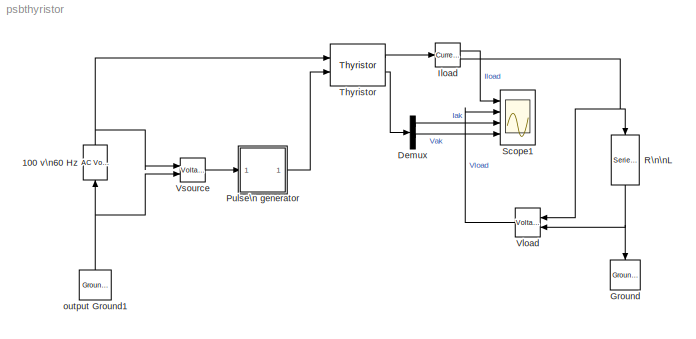
MODEL psbthyristor
KIND model
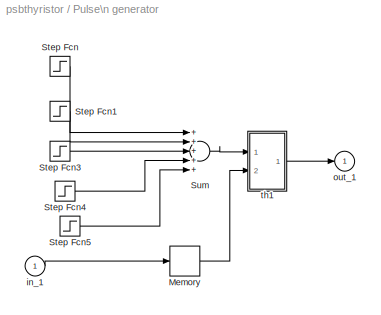
BLOCK [SubSystem]  Pulse\n generator
  MaskDisplay = plot(0,0,100,100,[90,75,75,60,60,35,35,20,20,10],[20,20,80,80,20,20,80,80,20,20])
  MaskIconFrame = on
  MaskIconOpaque = on
  MaskIconRotate = none
  MaskIconUnits = autoscale
  MinAlgLoopOccurrences = off
  Ports = [1, 1]
  RTWSystemCode = Auto
  ShowPortLabels = off
  TreatAsAtomicUnit = off
BLOCK [Memory]  Pulse\n generator/Memory
BLOCK [Step]  Pulse\n generator/Step Fcn
  After = 20
  Before = 20
  SampleTime = 0
  Time = 1/60
BLOCK [Step]  Pulse\n generator/Step Fcn1
  After = 30
  SampleTime = 0
  Time = 1/60
BLOCK [Step]  Pulse\n generator/Step Fcn3
  After = 30
  SampleTime = 0
  Time = 2/60
BLOCK [Step]  Pulse\n generator/Step Fcn4
  After = 30
  SampleTime = 0
  Time = 3/60
BLOCK [Step]  Pulse\n generator/Step Fcn5
  After = 30
  SampleTime = 0
  Time = 4/60
BLOCK [Sum]  Pulse\n generator/Sum
  Inputs = +++++
  Ports = [5, 1]
BLOCK [Inport]  Pulse\n generator/in_1
  IconDisplay = Port number
  LatchInput = off
  Port = 1
BLOCK [Outport]  Pulse\n generator/out_1
  IconDisplay = Port number
  InitialOutput = 0
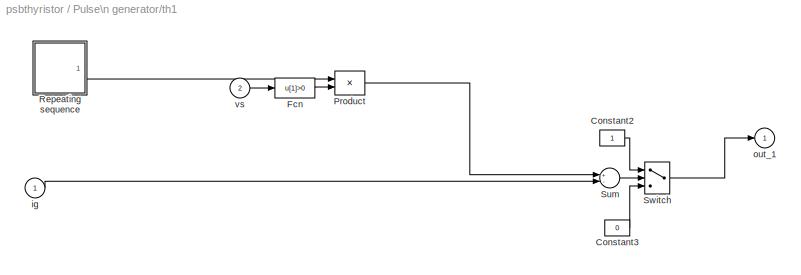
BLOCK [SubSystem]  Pulse\n generator/th1
  MinAlgLoopOccurrences = off
  Ports = [2, 1]
  RTWSystemCode = Auto
  ShowPortLabels = off
  TreatAsAtomicUnit = off
BLOCK [Constant]  Pulse\n generator/th1/Constant2
BLOCK [Constant]  Pulse\n generator/th1/Constant3
  Value = 0
BLOCK [Fcn]  Pulse\n generator/th1/Fcn
  Expr = u[1]>0
BLOCK [Product]  Pulse\n generator/th1/Product
  Ports = [2, 1]
  RndMeth = Floor
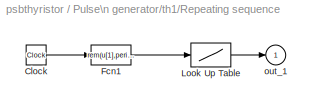
BLOCK [SubSystem]  Pulse\n generator/th1/Repeating sequence
  MaskCallbackString = |
  MaskDescription = Repeating table.\nEnter values of time and output for first cycle.
  MaskDisplay = plot([t,t+period,t+2*period],[y,y,y])
  MaskEnableString = on,on
  MaskHelp = Repeats cycle given in table. Time values should be monotonically increasing.
  MaskIconFrame = on
  MaskIconOpaque = on
  MaskIconRotate = none
  MaskIconUnits = autoscale
  MaskInitialization = period = max(@1); t = @1; y = @2;
  MaskPromptString = Time values:|Output values:
  MaskStyleString = edit,edit
  MaskTabNameString = ,
  MaskToolTipString = on,on
  MaskTunableValueString = on,on
  MaskType = Repeating table
  MaskValueString = [0 1/60 ]|[0 360 ]
  MaskVarAliasString = ,
  MaskVisibilityString = on,on
  MinAlgLoopOccurrences = off
  Ports = [0, 1]
  RTWSystemCode = Auto
  ShowPortLabels = off
  TreatAsAtomicUnit = off
BLOCK [Clock]  Pulse\n generator/th1/Repeating sequence/Clock
  Decimation = 10
BLOCK [Fcn]  Pulse\n generator/th1/Repeating sequence/Fcn1
  Expr = rem(u[1],period)
BLOCK [Lookup]  Pulse\n generator/th1/Repeating sequence/Look Up Table
  DialogController = Simulink.DDGSource
  InputValues = t
  OutputValues = y
BLOCK [Outport]  Pulse\n generator/th1/Repeating sequence/out_1
  IconDisplay = Port number
  InitialOutput = 0
BLOCK [Sum]  Pulse\n generator/th1/Sum
  Inputs = +-
  Ports = [2, 1]
BLOCK [Switch]  Pulse\n generator/th1/Switch
BLOCK [Inport]  Pulse\n generator/th1/ig
  IconDisplay = Port number
  LatchInput = off
  Port = 1
BLOCK [Outport]  Pulse\n generator/th1/out_1
  IconDisplay = Port number
  InitialOutput = 0
BLOCK [Inport]  Pulse\n generator/th1/vs
  IconDisplay = Port number
  LatchInput = off
  Port = 2
BLOCK [Reference] 100 v\n60 Hz  REF=powerlib2/Electrical\nSources/AC Voltage Source
  A = 100
  F = 60
  P = 0
  PSBOutputType = 1
  Ports = [1, 1]
  SourceBlock = powerlib2/Electrical\nSources/AC Voltage Source
  SourceType = AC Voltage Source
  Tag = PoWeRsYsTeMbLoCk
  mesure = None
  stime = 0
BLOCK [Demux] Demux
  Outputs = 2
  Ports = [1, 2]
BLOCK [Reference] Ground  REF=powerlib2/Connectors/Ground (input)
  Ports = [1]
  SourceBlock = powerlib2/Connectors/Ground (input)
  SourceType = Ground
  Tag = PoWeRsYsTeMbLoCk
BLOCK [Reference] Iload  REF=powerlib2/Measurements/Current Measurement
  OutputType = Magnitude
  PSBOutputType = 01
  PSBequivalent = 0
  PhasorSimulation = off
  Ports = [1, 2]
  SourceBlock = powerlib2/Measurements/Current Measurement
  SourceType = Current Measurement
  Tag = PoWeRsYsTeMmEaSuReMeNt
BLOCK [Reference] R\n\nL  REF=powerlib2/Elements/Series RLC Branch
  PSBOutputType = 1
  Ports = [1, 1]
  SourceBlock = powerlib2/Elements/Series RLC Branch
  SourceType = Series RLC Branch
  Tag = PoWeRsYsTeMbLoCk
  a = 1
  b = 10e-03
  c = inf
  mesure = None
BLOCK [Scope] Scope1
  DataFormat = Array
  LimitDataPoints = off
  NumInputPorts = 4
  Ports = [4]
  TimeRange = 0.1
  YMax = 50~100~40~200
  YMin = -50~-100~0~-200
BLOCK [Reference] Thyristor  REF=powerlib2/Power\nElectronics/Thyristor
  Cs = 4e-6
  IC = 0
  Lon = 0
  PSBOutputType = 10
  Ports = [2, 2]
  Ron = 1e-3
  Rs = 20
  SourceBlock = powerlib2/Power\nElectronics/Thyristor
  SourceType = Thyristor
  Tag = PoWeRsYsTeMbLoCk
  Vf = 0.8
BLOCK [Reference] Vload  REF=powerlib2/Measurements/Voltage Measurement
  OutputType = Magnitude
  PSBOutputType = 0
  PSBequivalent = 0
  PhasorSimulation = off
  Ports = [2, 1]
  SourceBlock = powerlib2/Measurements/Voltage Measurement
  SourceType = Voltage Measurement
  Tag = PoWeRsYsTeMmEaSuReMeNt
BLOCK [Reference] Vsource  REF=powerlib2/Measurements/Voltage Measurement
  OutputType = Magnitude
  PSBOutputType = 0
  PSBequivalent = 0
  PhasorSimulation = off
  Ports = [2, 1]
  SourceBlock = powerlib2/Measurements/Voltage Measurement
  SourceType = Voltage Measurement
  Tag = PoWeRsYsTeMmEaSuReMeNt
BLOCK [Reference] output Ground1  REF=powerlib2/Connectors/Ground (output)
  PSBOutputType = 1
  Ports = [0, 1]
  SourceBlock = powerlib2/Connectors/Ground (output)
  SourceType = Ground
  Tag = PoWeRsYsTeMbLoCk
LINE  Pulse\n generator/Memory:1 ->  Pulse\n generator/th1:2
LINE  Pulse\n generator/Step Fcn1:1 ->  Pulse\n generator/Sum:2
LINE  Pulse\n generator/Step Fcn3:1 ->  Pulse\n generator/Sum:3
LINE  Pulse\n generator/Step Fcn4:1 ->  Pulse\n generator/Sum:4
LINE  Pulse\n generator/Step Fcn5:1 ->  Pulse\n generator/Sum:5
LINE  Pulse\n generator/Step Fcn:1 ->  Pulse\n generator/Sum:1
LINE  Pulse\n generator/Sum:1 ->  Pulse\n generator/th1:1
LINE  Pulse\n generator/in_1:1 ->  Pulse\n generator/Memory:1
LINE  Pulse\n generator/th1/Constant2:1 ->  Pulse\n generator/th1/Switch:1
LINE  Pulse\n generator/th1/Constant3:1 ->  Pulse\n generator/th1/Switch:3
LINE  Pulse\n generator/th1/Fcn:1 ->  Pulse\n generator/th1/Product:2
LINE  Pulse\n generator/th1/Product:1 ->  Pulse\n generator/th1/Sum:1
LINE  Pulse\n generator/th1/Repeating sequence/Clock:1 ->  Pulse\n generator/th1/Repeating sequence/Fcn1:1
LINE  Pulse\n generator/th1/Repeating sequence/Fcn1:1 ->  Pulse\n generator/th1/Repeating sequence/Look Up Table:1
LINE  Pulse\n generator/th1/Repeating sequence/Look Up Table:1 ->  Pulse\n generator/th1/Repeating sequence/out_1:1
LINE  Pulse\n generator/th1/Repeating sequence:1 ->  Pulse\n generator/th1/Product:1
LINE  Pulse\n generator/th1/Sum:1 ->  Pulse\n generator/th1/Switch:2
LINE  Pulse\n generator/th1/Switch:1 ->  Pulse\n generator/th1/out_1:1
LINE  Pulse\n generator/th1/ig:1 ->  Pulse\n generator/th1/Sum:2
LINE  Pulse\n generator/th1/vs:1 ->  Pulse\n generator/th1/Fcn:1
LINE  Pulse\n generator/th1:1 ->  Pulse\n generator/out_1:1
LINE  Pulse\n generator:1 -> Thyristor:2
NET 100 v\n60 Hz:1 -> Thyristor:1, Vsource:1
LINE Demux:1 -> Scope1:3
LINE Demux:2 -> Scope1:4
LINE Iload:1 -> Scope1:1
NET Iload:2 -> R\n\nL:1, Vload:1
NET R\n\nL:1 -> Ground:1, Vload:2
LINE Thyristor:1 -> Iload:1
LINE Thyristor:2 -> Demux:1
LINE Vload:1 -> Scope1:2
LINE Vsource:1 ->  Pulse\n generator:1
NET output Ground1:1 -> 100 v\n60 Hz:1, Vsource:2
note: NET lines group one-source signal fan-out (src -> all destinations, sorted); 1:1 wires keep LINE
